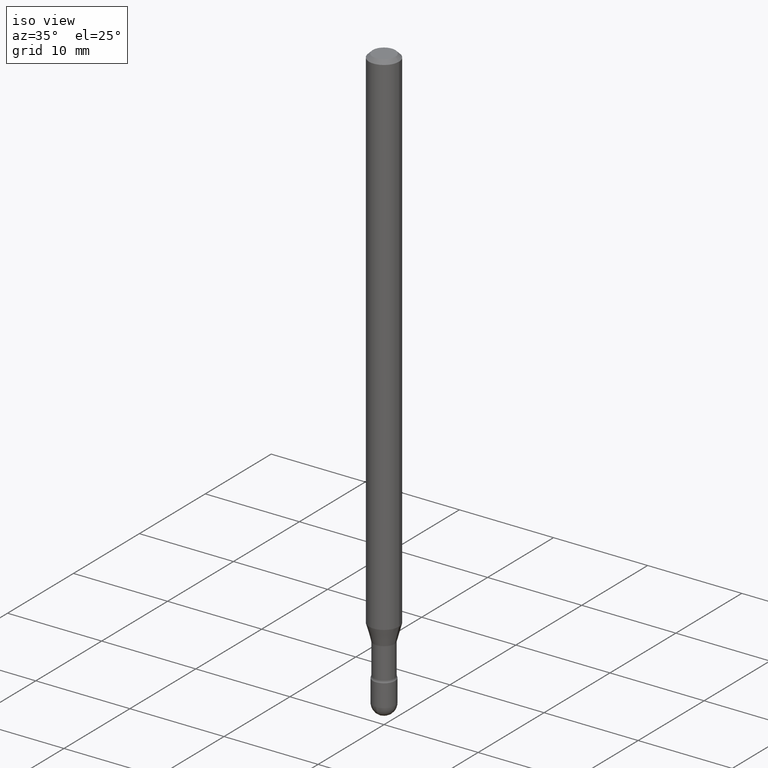
[diagram: clean part render]
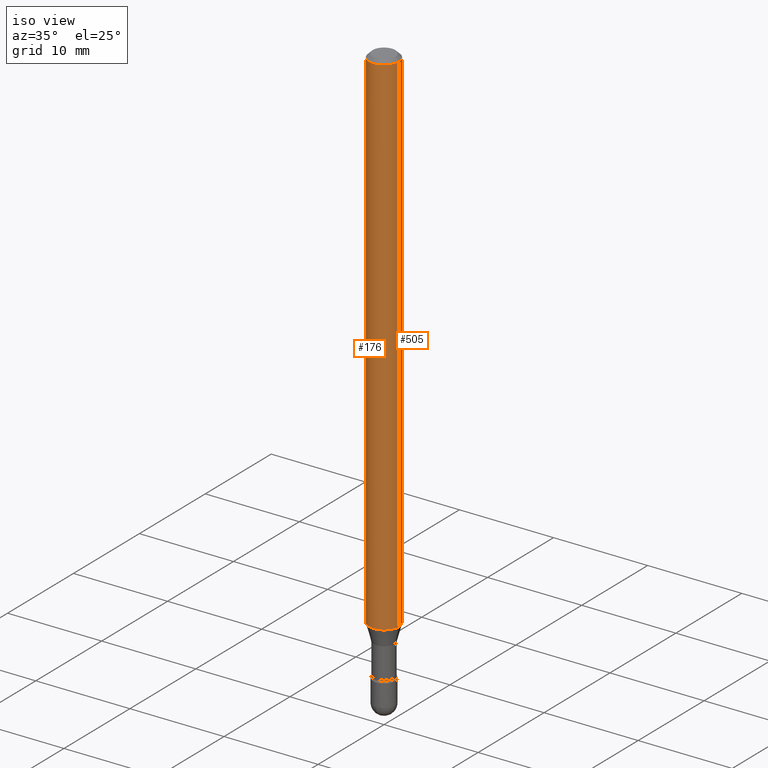
[diagram: same view with one multi-face feature highlighted, each face labeled with its STEP entity id]
A machine part, iso view. The highlighted faces form ONE feature: a constant-radius fillet chain: 2 tangent blend faces with common blend radius 1.5875 mm. The faces share edges in the B-rep.
Their STEP definitions:
[1] entity #505 (Cylinder):
#6 = CARTESIAN_POINT ( 'NONE',  ( -0.06250000000000000000, 4.440892098500642925E-16, 4.780733988912429571E-16 ) ) ;
#21 = CARTESIAN_POINT ( 'NONE',  ( 5.259805878476644450E-29, -7.509608801466092059E-15, -2.150837444817705446 ) ) ;
#44 = CIRCLE ( 'NONE', #419, 0.06250000000000000000 ) ;
#58 = ORIENTED_EDGE ( 'NONE', *, *, #219, .F. ) ;
#60 = DIRECTION ( 'NONE',  ( 1.000000000000000000, -6.982962677686266711E-15, 4.852736867747366207E-29 ) ) ;
#65 = ORIENTED_EDGE ( 'NONE', *, *, #150, .F. ) ;
#69 = ORIENTED_EDGE ( 'NONE', *, *, #71, .T. ) ;
#71 = EDGE_CURVE ( 'NONE', #555, #246, #256, .T. ) ;
#97 = CARTESIAN_POINT ( 'NONE',  ( 0.06250000000000000000, -4.364351673553899931E-16, 4.780733988912490708E-16 ) ) ;
#146 = VECTOR ( 'NONE', #496, 39.37007874015748143 ) ;
#150 = EDGE_CURVE ( 'NONE', #487, #547, #502, .T. ) ;
#172 = AXIS2_PLACEMENT_3D ( 'NONE', #367, #412, #60 ) ;
#188 = CARTESIAN_POINT ( 'NONE',  ( 0.06250000000000000000, -4.888073874380391431E-16, -0.01500000000000008271 ) ) ;
#219 = EDGE_CURVE ( 'NONE', #547, #246, #44, .T. ) ;
#246 = VERTEX_POINT ( 'NONE', #407 ) ;
#256 = LINE ( 'NONE', #6, #371 ) ;
#272 = CYLINDRICAL_SURFACE ( 'NONE', #172, 0.06250000000000000000 ) ;
#274 = CARTESIAN_POINT ( 'NONE',  ( 3.668203209277725232E-31, -5.237222008264747365E-17, -0.01500000000000008271 ) ) ;
#285 = DIRECTION ( 'NONE',  ( 1.000000000000000000, -6.982962677686266711E-15, 0.000000000000000000 ) ) ;
#316 = CARTESIAN_POINT ( 'NONE',  ( -0.06250000000000000000, -7.065519591616030231E-15, -2.150837444817705446 ) ) ;
#320 = AXIS2_PLACEMENT_3D ( 'NONE', #21, #333, #500 ) ;
#333 = DIRECTION ( 'NONE',  ( -2.445468806185136597E-29, 3.491481338843145583E-15, 1.000000000000000000 ) ) ;
#334 = EDGE_LOOP ( 'NONE', ( #391, #69, #58, #65 ) ) ;
#367 = CARTESIAN_POINT ( 'NONE',  ( -1.169113584055446105E-44, 1.669184350826100908E-30, 4.780733988912460139E-16 ) ) ;
#371 = VECTOR ( 'NONE', #433, 39.37007874015748143 ) ;
#391 = ORIENTED_EDGE ( 'NONE', *, *, #559, .T. ) ;
#407 = CARTESIAN_POINT ( 'NONE',  ( -0.06250000000000000000, -3.336901300924307150E-15, -0.01500000000000008271 ) ) ;
#412 = DIRECTION ( 'NONE',  ( -2.445468806185136597E-29, 3.491481338843145583E-15, 1.000000000000000000 ) ) ;
#419 = AXIS2_PLACEMENT_3D ( 'NONE', #274, #483, #285 ) ;
#433 = DIRECTION ( 'NONE',  ( -2.445468806185136877E-29, 3.491481338843145188E-15, 1.000000000000000000 ) ) ;
#444 = CIRCLE ( 'NONE', #320, 0.06250000000000000000 ) ;
#448 = FACE_OUTER_BOUND ( 'NONE', #334, .T. ) ;
#450 = CARTESIAN_POINT ( 'NONE',  ( 0.06250000000000000000, -7.946043968821483728E-15, -2.150837444817705446 ) ) ;
#483 = DIRECTION ( 'NONE',  ( -2.445468806185136597E-29, 3.491481338843145583E-15, 1.000000000000000000 ) ) ;
#487 = VERTEX_POINT ( 'NONE', #450 ) ;
#496 = DIRECTION ( 'NONE',  ( -2.445468806185136877E-29, 3.491481338843145188E-15, 1.000000000000000000 ) ) ;
#500 = DIRECTION ( 'NONE',  ( 1.000000000000000000, -6.982962677686262766E-15, 0.000000000000000000 ) ) ;
#502 = LINE ( 'NONE', #97, #146 ) ;
#505 = ADVANCED_FACE ( 'NONE', ( #448 ), #272, .T. ) ;
#547 = VERTEX_POINT ( 'NONE', #188 ) ;
#555 = VERTEX_POINT ( 'NONE', #316 ) ;
#559 = EDGE_CURVE ( 'NONE', #487, #555, #444, .T. ) ;
[2] entity #176 (Cylinder):
#6 = CARTESIAN_POINT ( 'NONE',  ( -0.06250000000000000000, 4.440892098500642925E-16, 4.780733988912429571E-16 ) ) ;
#59 = DIRECTION ( 'NONE',  ( 1.000000000000000000, -6.982962677686266711E-15, 4.852736867747366207E-29 ) ) ;
#70 = DIRECTION ( 'NONE',  ( 1.000000000000000000, -6.982962677686266711E-15, 0.000000000000000000 ) ) ;
#71 = EDGE_CURVE ( 'NONE', #555, #246, #256, .T. ) ;
#97 = CARTESIAN_POINT ( 'NONE',  ( 0.06250000000000000000, -4.364351673553899931E-16, 4.780733988912490708E-16 ) ) ;
#98 = AXIS2_PLACEMENT_3D ( 'NONE', #161, #218, #70 ) ;
#101 = ORIENTED_EDGE ( 'NONE', *, *, #238, .F. ) ;
#108 = AXIS2_PLACEMENT_3D ( 'NONE', #275, #180, #192 ) ;
#146 = VECTOR ( 'NONE', #496, 39.37007874015748143 ) ;
#147 = CYLINDRICAL_SURFACE ( 'NONE', #525, 0.06250000000000000000 ) ;
#150 = EDGE_CURVE ( 'NONE', #487, #547, #502, .T. ) ;
#161 = CARTESIAN_POINT ( 'NONE',  ( 3.668203209277725232E-31, -5.237222008264747365E-17, -0.01500000000000008271 ) ) ;
#168 = EDGE_CURVE ( 'NONE', #555, #487, #485, .T. ) ;
#176 = ADVANCED_FACE ( 'NONE', ( #545 ), #147, .T. ) ;
#180 = DIRECTION ( 'NONE',  ( -2.445468806185136597E-29, 3.491481338843145583E-15, 1.000000000000000000 ) ) ;
#188 = CARTESIAN_POINT ( 'NONE',  ( 0.06250000000000000000, -4.888073874380391431E-16, -0.01500000000000008271 ) ) ;
#192 = DIRECTION ( 'NONE',  ( 1.000000000000000000, -6.982962677686262766E-15, 0.000000000000000000 ) ) ;
#218 = DIRECTION ( 'NONE',  ( -2.445468806185136597E-29, 3.491481338843145583E-15, 1.000000000000000000 ) ) ;
#238 = EDGE_CURVE ( 'NONE', #246, #547, #451, .T. ) ;
#246 = VERTEX_POINT ( 'NONE', #407 ) ;
#256 = LINE ( 'NONE', #6, #371 ) ;
#275 = CARTESIAN_POINT ( 'NONE',  ( 5.259805878476644450E-29, -7.509608801466092059E-15, -2.150837444817705446 ) ) ;
#308 = ORIENTED_EDGE ( 'NONE', *, *, #150, .T. ) ;
#316 = CARTESIAN_POINT ( 'NONE',  ( -0.06250000000000000000, -7.065519591616030231E-15, -2.150837444817705446 ) ) ;
#328 = EDGE_LOOP ( 'NONE', ( #527, #468, #308, #101 ) ) ;
#371 = VECTOR ( 'NONE', #433, 39.37007874015748143 ) ;
#407 = CARTESIAN_POINT ( 'NONE',  ( -0.06250000000000000000, -3.336901300924307150E-15, -0.01500000000000008271 ) ) ;
#433 = DIRECTION ( 'NONE',  ( -2.445468806185136877E-29, 3.491481338843145188E-15, 1.000000000000000000 ) ) ;
#450 = CARTESIAN_POINT ( 'NONE',  ( 0.06250000000000000000, -7.946043968821483728E-15, -2.150837444817705446 ) ) ;
#451 = CIRCLE ( 'NONE', #98, 0.06250000000000000000 ) ;
#468 = ORIENTED_EDGE ( 'NONE', *, *, #168, .T. ) ;
#485 = CIRCLE ( 'NONE', #108, 0.06250000000000000000 ) ;
#487 = VERTEX_POINT ( 'NONE', #450 ) ;
#496 = DIRECTION ( 'NONE',  ( -2.445468806185136877E-29, 3.491481338843145188E-15, 1.000000000000000000 ) ) ;
#502 = LINE ( 'NONE', #97, #146 ) ;
#507 = DIRECTION ( 'NONE',  ( -2.445468806185136597E-29, 3.491481338843145583E-15, 1.000000000000000000 ) ) ;
#525 = AXIS2_PLACEMENT_3D ( 'NONE', #537, #507, #59 ) ;
#527 = ORIENTED_EDGE ( 'NONE', *, *, #71, .F. ) ;
#537 = CARTESIAN_POINT ( 'NONE',  ( -1.169113584055446105E-44, 1.669184350826100908E-30, 4.780733988912460139E-16 ) ) ;
#545 = FACE_OUTER_BOUND ( 'NONE', #328, .T. ) ;
#547 = VERTEX_POINT ( 'NONE', #188 ) ;
#555 = VERTEX_POINT ( 'NONE', #316 ) ;